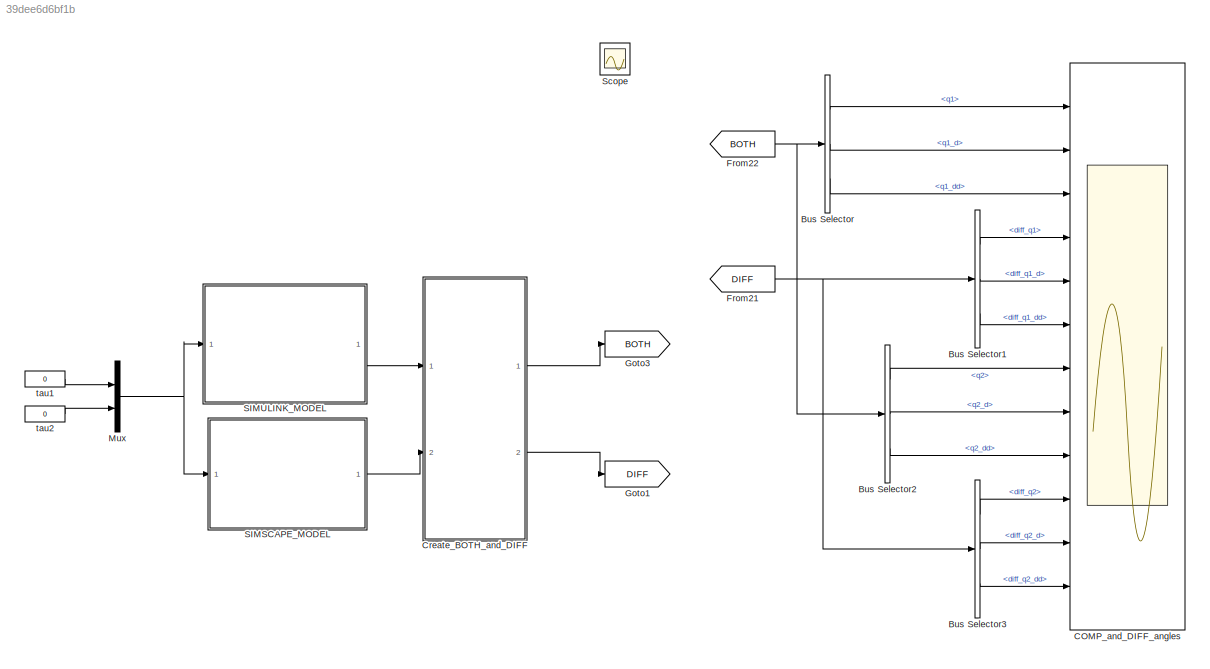
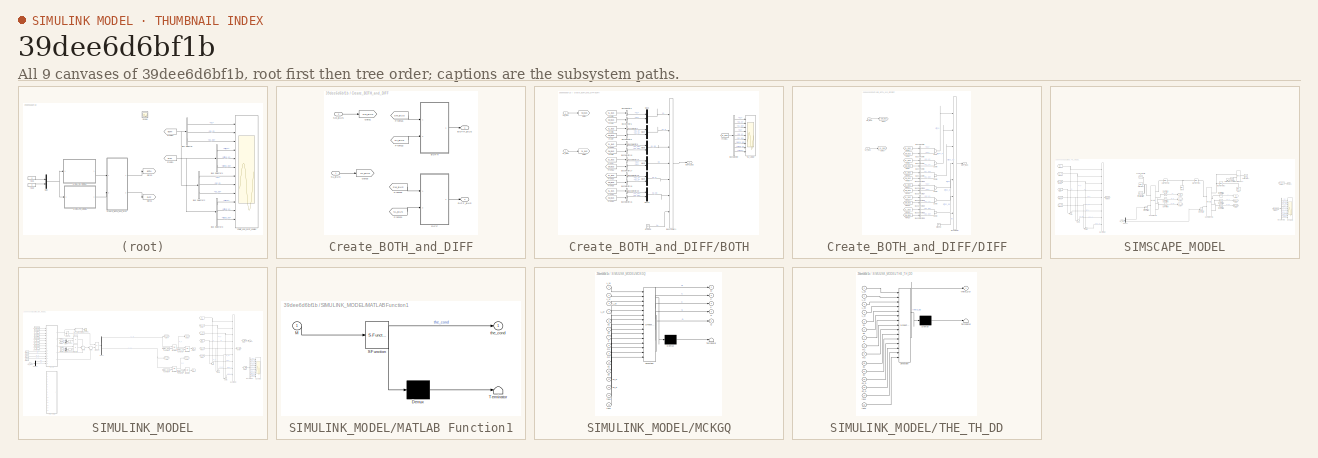
[diagram: thumbnail index - all 9 canvases of the model, root first then tree order]
MODEL slx_39dee6d6bf1b
KIND model
CONFIG AbsTol = auto
CONFIG EnableMultiTasking = on
CONFIG FixedStep = auto
CONFIG MaxStep = auto
CONFIG MinStep = auto
CONFIG RelTol = 1e-5
CONFIG SampleTimeConstraint = Unconstrained
CONFIG SolverName = ode15s
CONFIG StartTime = 0.0
CONFIG StopTime = 50
BLOCK [BusSelector] Bus Selector
  OutputSignals = q1,q1_d,q1_dd
  Ports = [1, 3]
BLOCK [BusSelector] Bus Selector1
  OutputSignals = diff_q1,diff_q1_d,diff_q1_dd
  Ports = [1, 3]
BLOCK [BusSelector] Bus Selector2
  OutputSignals = q2,q2_d,q2_dd
  Ports = [1, 3]
BLOCK [BusSelector] Bus Selector3
  OutputSignals = diff_q2,diff_q2_d,diff_q2_dd
  Ports = [1, 3]
BLOCK [Scope] COMP_and_DIFF_angles
  Floating = off
  NumInputPorts = 12
  Ports = [12]
  ScopeSpecificationString = Simulink.scopes.TimeScopeBlockCfg('CurrentConfiguration', extmgr.ConfigurationSet(extmgr.Configuration('Core','General UI',true),extmgr.Configuration('Core','Source UI',true),extmgr.Configuration('Sources','WiredSimulink',true,'DataLoggingVariableName','ScopeData3'),extmgr.Configuration('Visuals','Time Domain',true,'SerializedDisplays',{struct('MinYLimReal','-3.26836','MaxYLimReal','0.36315','YLab...<+9294ch>
BLOCK [SubSystem] Create_BOTH_and_DIFF
  Ports = [2, 2]
  RequestExecContextInheritance = off
BLOCK [SubSystem] Create_BOTH_and_DIFF/BOTH
  Ports = [2, 1]
  RequestExecContextInheritance = off
BLOCK [Outport] Create_BOTH_and_DIFF/BOTH/BOTH_BUS
BLOCK [BusCreator] Create_BOTH_and_DIFF/BOTH/Bus Creator1
  DisplayOption = bar
  InheritFromInputs = on
  Inputs = 7
  Ports = [7, 1]
BLOCK [BusSelector] Create_BOTH_and_DIFF/BOTH/Bus Selector
  OutputSignals = q1,q1_d,q1_dd,q2,q2_d,q2_dd,alpha_dd,alpha_d,alpha
  Ports = [1, 9]
BLOCK [BusSelector] Create_BOTH_and_DIFF/BOTH/Bus Selector10
  OutputSignals = q1_dd
  Ports = [1, 1]
BLOCK [BusSelector] Create_BOTH_and_DIFF/BOTH/Bus Selector15
  OutputSignals = q2_dd
  Ports = [1, 1]
BLOCK [BusSelector] Create_BOTH_and_DIFF/BOTH/Bus Selector16
  OutputSignals = q2
  Ports = [1, 1]
BLOCK [BusSelector] Create_BOTH_and_DIFF/BOTH/Bus Selector17
  OutputSignals = q2
  Ports = [1, 1]
BLOCK [BusSelector] Create_BOTH_and_DIFF/BOTH/Bus Selector18
  OutputSignals = q2_d
  Ports = [1, 1]
BLOCK [BusSelector] Create_BOTH_and_DIFF/BOTH/Bus Selector19
  OutputSignals = q2_d
  Ports = [1, 1]
BLOCK [BusSelector] Create_BOTH_and_DIFF/BOTH/Bus Selector20
  OutputSignals = q2_dd
  Ports = [1, 1]
BLOCK [BusSelector] Create_BOTH_and_DIFF/BOTH/Bus Selector5
  OutputSignals = q1
  Ports = [1, 1]
BLOCK [BusSelector] Create_BOTH_and_DIFF/BOTH/Bus Selector6
  OutputSignals = q1
  Ports = [1, 1]
BLOCK [BusSelector] Create_BOTH_and_DIFF/BOTH/Bus Selector7
  OutputSignals = q1_d
  Ports = [1, 1]
BLOCK [BusSelector] Create_BOTH_and_DIFF/BOTH/Bus Selector8
  OutputSignals = q1_d
  Ports = [1, 1]
BLOCK [BusSelector] Create_BOTH_and_DIFF/BOTH/Bus Selector9
  OutputSignals = q1_dd
  Ports = [1, 1]
BLOCK [From] Create_BOTH_and_DIFF/BOTH/From10
  GotoTag = SL_BUS
BLOCK [From] Create_BOTH_and_DIFF/BOTH/From15
  GotoTag = SL_BUS
BLOCK [From] Create_BOTH_and_DIFF/BOTH/From16
  GotoTag = SM_BUS
BLOCK [From] Create_BOTH_and_DIFF/BOTH/From17
  GotoTag = SL_BUS
BLOCK [From] Create_BOTH_and_DIFF/BOTH/From18
  GotoTag = SM_BUS
BLOCK [From] Create_BOTH_and_DIFF/BOTH/From19
  GotoTag = SL_BUS
BLOCK [From] Create_BOTH_and_DIFF/BOTH/From20
  GotoTag = SM_BUS
BLOCK [From] Create_BOTH_and_DIFF/BOTH/From21
  GotoTag = SL_BUS
BLOCK [From] Create_BOTH_and_DIFF/BOTH/From4
  GotoTag = SM_BUS
BLOCK [From] Create_BOTH_and_DIFF/BOTH/From5
  GotoTag = SL_BUS
BLOCK [From] Create_BOTH_and_DIFF/BOTH/From7
  GotoTag = SM_BUS
BLOCK [From] Create_BOTH_and_DIFF/BOTH/From8
  GotoTag = SL_BUS
BLOCK [From] Create_BOTH_and_DIFF/BOTH/From9
  GotoTag = SM_BUS
BLOCK [Goto] Create_BOTH_and_DIFF/BOTH/Goto1
  GotoTag = SM_BUS
BLOCK [Goto] Create_BOTH_and_DIFF/BOTH/Goto3
  GotoTag = SL_BUS
BLOCK [Ground] Create_BOTH_and_DIFF/BOTH/Ground
BLOCK [Mux] Create_BOTH_and_DIFF/BOTH/Mux10
  DisplayOption = bar
  Inputs = 2
  Ports = [2, 1]
BLOCK [Mux] Create_BOTH_and_DIFF/BOTH/Mux3
  DisplayOption = bar
  Inputs = 2
  Ports = [2, 1]
BLOCK [Mux] Create_BOTH_and_DIFF/BOTH/Mux4
  DisplayOption = bar
  Inputs = 2
  Ports = [2, 1]
BLOCK [Mux] Create_BOTH_and_DIFF/BOTH/Mux5
  DisplayOption = bar
  Inputs = 2
  Ports = [2, 1]
BLOCK [Mux] Create_BOTH_and_DIFF/BOTH/Mux8
  DisplayOption = bar
  Inputs = 2
  Ports = [2, 1]
BLOCK [Mux] Create_BOTH_and_DIFF/BOTH/Mux9
  DisplayOption = bar
  Inputs = 2
  Ports = [2, 1]
BLOCK [Scope] Create_BOTH_and_DIFF/BOTH/SL_ANGS
  Floating = off
  NumInputPorts = 9
  Ports = [9]
  ScopeSpecificationString = Simulink.scopes.TimeScopeBlockCfg('CurrentConfiguration', extmgr.ConfigurationSet(extmgr.Configuration('Core','General UI',true),extmgr.Configuration('Core','Source UI',true),extmgr.Configuration('Sources','WiredSimulink',true,'DataLoggingVariableName','ScopeData4'),extmgr.Configuration('Visuals','Time Domain',true,'SerializedDisplays',{struct('MinYLimReal','-55.14001','MaxYLimReal','327.33011','Y...<+6927ch>
BLOCK [Inport] Create_BOTH_and_DIFF/BOTH/SL_BUS
  Port = 2
BLOCK [Inport] Create_BOTH_and_DIFF/BOTH/SM_BUS
BLOCK [Outport] Create_BOTH_and_DIFF/BOTH_BUS
BLOCK [SubSystem] Create_BOTH_and_DIFF/DIFF
  Ports = [2, 1]
  RequestExecContextInheritance = off
BLOCK [BusCreator] Create_BOTH_and_DIFF/DIFF/Bus Creator
  DisplayOption = bar
  InheritFromInputs = on
  Inputs = 7
  Ports = [7, 1]
BLOCK [BusSelector] Create_BOTH_and_DIFF/DIFF/Bus Selector10
  OutputSignals = q1_dd
  Ports = [1, 1]
BLOCK [BusSelector] Create_BOTH_and_DIFF/DIFF/Bus Selector15
  OutputSignals = q2_dd
  Ports = [1, 1]
BLOCK [BusSelector] Create_BOTH_and_DIFF/DIFF/Bus Selector16
  OutputSignals = q2
  Ports = [1, 1]
BLOCK [BusSelector] Create_BOTH_and_DIFF/DIFF/Bus Selector17
  OutputSignals = q2
  Ports = [1, 1]
BLOCK [BusSelector] Create_BOTH_and_DIFF/DIFF/Bus Selector18
  OutputSignals = q2_d
  Ports = [1, 1]
BLOCK [BusSelector] Create_BOTH_and_DIFF/DIFF/Bus Selector19
  OutputSignals = q2_d
  Ports = [1, 1]
BLOCK [BusSelector] Create_BOTH_and_DIFF/DIFF/Bus Selector20
  OutputSignals = q2_dd
  Ports = [1, 1]
BLOCK [BusSelector] Create_BOTH_and_DIFF/DIFF/Bus Selector5
  OutputSignals = q1
  Ports = [1, 1]
BLOCK [BusSelector] Create_BOTH_and_DIFF/DIFF/Bus Selector6
  OutputSignals = q1
  Ports = [1, 1]
BLOCK [BusSelector] Create_BOTH_and_DIFF/DIFF/Bus Selector7
  OutputSignals = q1_d
  Ports = [1, 1]
BLOCK [BusSelector] Create_BOTH_and_DIFF/DIFF/Bus Selector8
  OutputSignals = q1_d
  Ports = [1, 1]
BLOCK [BusSelector] Create_BOTH_and_DIFF/DIFF/Bus Selector9
  OutputSignals = q1_dd
  Ports = [1, 1]
BLOCK [Outport] Create_BOTH_and_DIFF/DIFF/DIFF_BUS
BLOCK [From] Create_BOTH_and_DIFF/DIFF/From10
  GotoTag = SL_BUS
BLOCK [From] Create_BOTH_and_DIFF/DIFF/From15
  GotoTag = SL_BUS
BLOCK [From] Create_BOTH_and_DIFF/DIFF/From16
  GotoTag = SM_BUS
BLOCK [From] Create_BOTH_and_DIFF/DIFF/From17
  GotoTag = SL_BUS
BLOCK [From] Create_BOTH_and_DIFF/DIFF/From18
  GotoTag = SM_BUS
BLOCK [From] Create_BOTH_and_DIFF/DIFF/From19
  GotoTag = SL_BUS
BLOCK [From] Create_BOTH_and_DIFF/DIFF/From20
  GotoTag = SM_BUS
BLOCK [From] Create_BOTH_and_DIFF/DIFF/From4
  GotoTag = SM_BUS
BLOCK [From] Create_BOTH_and_DIFF/DIFF/From5
  GotoTag = SL_BUS
BLOCK [From] Create_BOTH_and_DIFF/DIFF/From7
  GotoTag = SM_BUS
BLOCK [From] Create_BOTH_and_DIFF/DIFF/From8
  GotoTag = SL_BUS
BLOCK [From] Create_BOTH_and_DIFF/DIFF/From9
  GotoTag = SM_BUS
BLOCK [Goto] Create_BOTH_and_DIFF/DIFF/Goto1
  GotoTag = SM_BUS
BLOCK [Goto] Create_BOTH_and_DIFF/DIFF/Goto3
  GotoTag = SL_BUS
BLOCK [Ground] Create_BOTH_and_DIFF/DIFF/Ground
BLOCK [Inport] Create_BOTH_and_DIFF/DIFF/SL_BUS
  Port = 2
BLOCK [Inport] Create_BOTH_and_DIFF/DIFF/SM_BUS
BLOCK [Sum] Create_BOTH_and_DIFF/DIFF/Sum2
  Inputs = +|-
  Ports = [2, 1]
BLOCK [Sum] Create_BOTH_and_DIFF/DIFF/Sum3
  Inputs = +|-
  Ports = [2, 1]
BLOCK [Sum] Create_BOTH_and_DIFF/DIFF/Sum4
  Inputs = +|-
  Ports = [2, 1]
BLOCK [Sum] Create_BOTH_and_DIFF/DIFF/Sum5
  Inputs = +|-
  Ports = [2, 1]
BLOCK [Sum] Create_BOTH_and_DIFF/DIFF/Sum6
  Inputs = +|-
  Ports = [2, 1]
BLOCK [Sum] Create_BOTH_and_DIFF/DIFF/Sum7
  Inputs = +|-
  Ports = [2, 1]
BLOCK [Outport] Create_BOTH_and_DIFF/DIFF_BUS
  Port = 2
BLOCK [From] Create_BOTH_and_DIFF/From21
  GotoTag = SM_BUS
BLOCK [From] Create_BOTH_and_DIFF/From22
  GotoTag = SL_BUS
BLOCK [From] Create_BOTH_and_DIFF/From23
  GotoTag = SM_BUS
BLOCK [From] Create_BOTH_and_DIFF/From24
  GotoTag = SL_BUS
BLOCK [Goto] Create_BOTH_and_DIFF/Goto1
  GotoTag = SM_BUS
BLOCK [Goto] Create_BOTH_and_DIFF/Goto3
  GotoTag = SL_BUS
BLOCK [Inport] Create_BOTH_and_DIFF/SL_BUS
BLOCK [Inport] Create_BOTH_and_DIFF/SM_BUS
  Port = 2
BLOCK [From] From21
  GotoTag = DIFF
BLOCK [From] From22
  GotoTag = BOTH
BLOCK [Goto] Goto1
  GotoTag = DIFF
BLOCK [Goto] Goto3
  GotoTag = BOTH
BLOCK [Mux] Mux
  DisplayOption = bar
  Inputs = 2
  Ports = [2, 1]
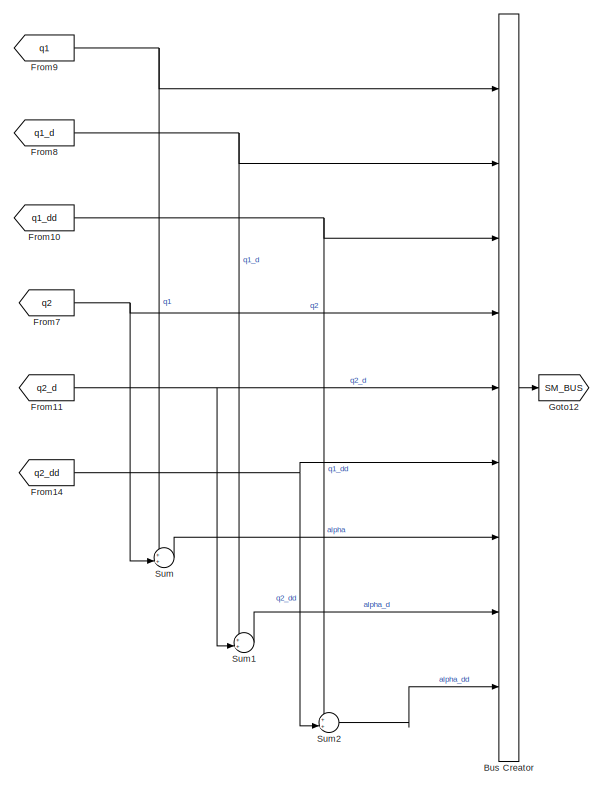
[diagram: SIMSCAPE_MODEL - part 1/3, left side, full height]
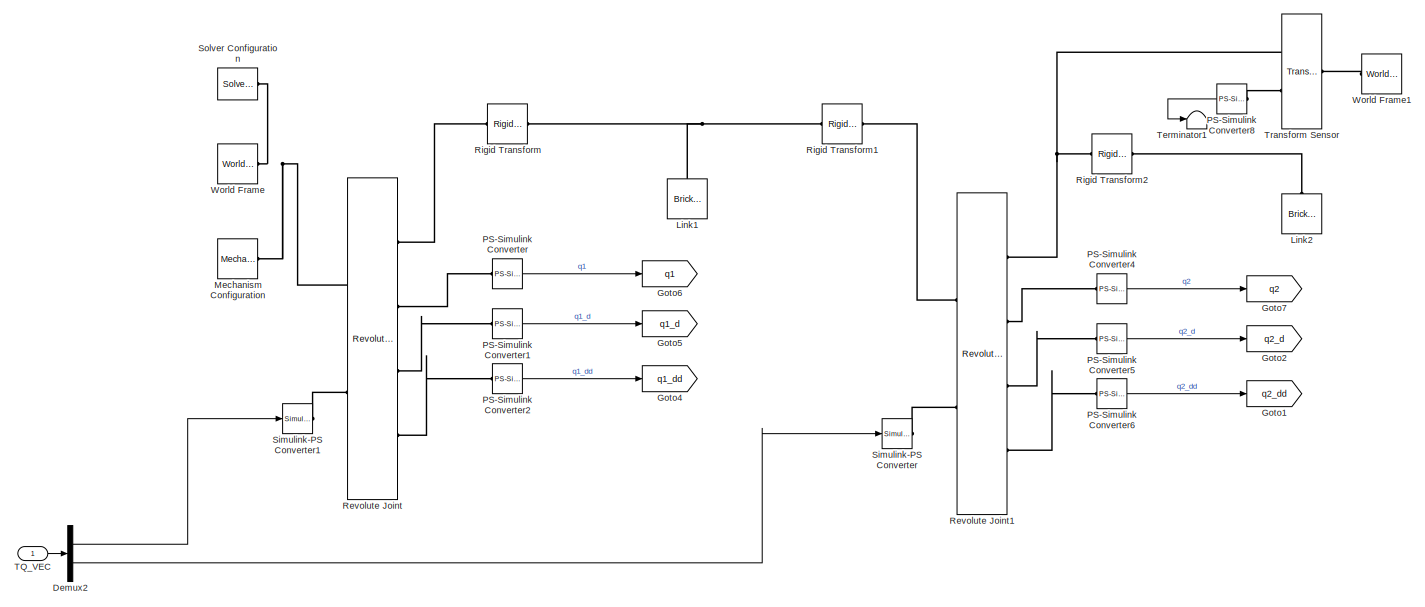
[diagram: SIMSCAPE_MODEL - part 2/3, center side, full height]
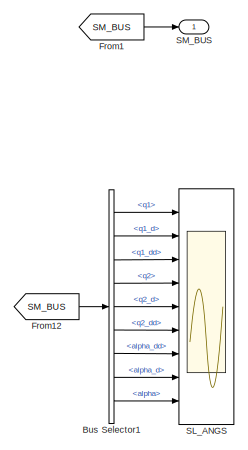
[diagram: SIMSCAPE_MODEL - part 3/3, middle right region]
BLOCK [SubSystem] SIMSCAPE_MODEL
  Ports = [1, 1]
  RequestExecContextInheritance = off
BLOCK [BusCreator] SIMSCAPE_MODEL/Bus Creator
  DisplayOption = bar
  InheritFromInputs = on
  Inputs = 9
  Ports = [9, 1]
BLOCK [BusSelector] SIMSCAPE_MODEL/Bus Selector1
  OutputSignals = q1,q1_d,q1_dd,q2,q2_d,q2_dd,alpha_dd,alpha_d,alpha
  Ports = [1, 9]
BLOCK [Demux] SIMSCAPE_MODEL/Demux2
  Outputs = 2
  Ports = [1, 2]
BLOCK [From] SIMSCAPE_MODEL/From1
  GotoTag = SM_BUS
BLOCK [From] SIMSCAPE_MODEL/From10
  GotoTag = q1_dd
BLOCK [From] SIMSCAPE_MODEL/From11
  GotoTag = q2_d
BLOCK [From] SIMSCAPE_MODEL/From12
  GotoTag = SM_BUS
BLOCK [From] SIMSCAPE_MODEL/From14
  GotoTag = q2_dd
BLOCK [From] SIMSCAPE_MODEL/From7
  GotoTag = q2
BLOCK [From] SIMSCAPE_MODEL/From8
  GotoTag = q1_d
BLOCK [From] SIMSCAPE_MODEL/From9
  GotoTag = q1
BLOCK [Goto] SIMSCAPE_MODEL/Goto1
  GotoTag = q2_dd
BLOCK [Goto] SIMSCAPE_MODEL/Goto12
  GotoTag = SM_BUS
BLOCK [Goto] SIMSCAPE_MODEL/Goto2
  GotoTag = q2_d
BLOCK [Goto] SIMSCAPE_MODEL/Goto4
  GotoTag = q1_dd
BLOCK [Goto] SIMSCAPE_MODEL/Goto5
  GotoTag = q1_d
BLOCK [Goto] SIMSCAPE_MODEL/Goto6
  GotoTag = q1
BLOCK [Goto] SIMSCAPE_MODEL/Goto7
  GotoTag = q2
BLOCK [Reference] SIMSCAPE_MODEL/Link1  REF=sm_lib/Body Elements/Brick Solid
  NameLocation = right
  Ports = [0, 0, 0, 0, 0, 0, 1]
  SourceBlock = sm_lib/Body Elements/Brick Solid
  SourceProductBaseCode = MS
  SourceType = Brick Solid
BLOCK [Reference] SIMSCAPE_MODEL/Link2  REF=sm_lib/Body Elements/Brick Solid
  NameLocation = right
  Ports = [0, 0, 0, 0, 0, 0, 1]
  SourceBlock = sm_lib/Body Elements/Brick Solid
  SourceProductBaseCode = MS
  SourceType = Brick Solid
BLOCK [Reference] SIMSCAPE_MODEL/Mechanism Configuration  REF=sm_lib/Utilities/Mechanism
Configuration
  Ports = [0, 0, 0, 0, 0, 0, 1]
  SourceBlock = sm_lib/Utilities/Mechanism\nConfiguration
  SourceProductBaseCode = MS
  SourceType = Mechanism\nConfiguration
BLOCK [Reference] SIMSCAPE_MODEL/PS-Simulink Converter  REF=nesl_utility/PS-Simulink
Converter
  Ports = [0, 1, 0, 0, 0, 1]
  SourceBlock = nesl_utility/PS-Simulink\nConverter
  SourceProductBaseCode = PW,SS
  SourceType = PS-Simulink\nConverter
BLOCK [Reference] SIMSCAPE_MODEL/PS-Simulink Converter1  REF=nesl_utility/PS-Simulink
Converter
  Ports = [0, 1, 0, 0, 0, 1]
  SourceBlock = nesl_utility/PS-Simulink\nConverter
  SourceProductBaseCode = PW,SS
  SourceType = PS-Simulink\nConverter
BLOCK [Reference] SIMSCAPE_MODEL/PS-Simulink Converter2  REF=nesl_utility/PS-Simulink
Converter
  Ports = [0, 1, 0, 0, 0, 1]
  SourceBlock = nesl_utility/PS-Simulink\nConverter
  SourceProductBaseCode = PW,SS
  SourceType = PS-Simulink\nConverter
BLOCK [Reference] SIMSCAPE_MODEL/PS-Simulink Converter4  REF=nesl_utility/PS-Simulink
Converter
  Ports = [0, 1, 0, 0, 0, 1]
  SourceBlock = nesl_utility/PS-Simulink\nConverter
  SourceProductBaseCode = PW,SS
  SourceType = PS-Simulink\nConverter
BLOCK [Reference] SIMSCAPE_MODEL/PS-Simulink Converter5  REF=nesl_utility/PS-Simulink
Converter
  Ports = [0, 1, 0, 0, 0, 1]
  SourceBlock = nesl_utility/PS-Simulink\nConverter
  SourceProductBaseCode = PW,SS
  SourceType = PS-Simulink\nConverter
BLOCK [Reference] SIMSCAPE_MODEL/PS-Simulink Converter6  REF=nesl_utility/PS-Simulink
Converter
  Ports = [0, 1, 0, 0, 0, 1]
  SourceBlock = nesl_utility/PS-Simulink\nConverter
  SourceProductBaseCode = PW,SS
  SourceType = PS-Simulink\nConverter
BLOCK [Reference] SIMSCAPE_MODEL/PS-Simulink Converter8  REF=nesl_utility/PS-Simulink
Converter
  NameLocation = top
  Ports = [0, 1, 0, 0, 0, 1]
  SourceBlock = nesl_utility/PS-Simulink\nConverter
  SourceProductBaseCode = PW,SS
  SourceType = PS-Simulink\nConverter
BLOCK [Reference] SIMSCAPE_MODEL/Revolute Joint  REF=sm_lib/Joints/Revolute Joint
  AttributesFormatString = %<DampingCoefficient>\n%<PositionTargetValue>\n%<VelocityTargetValue>
  Ports = [0, 0, 0, 0, 0, 2, 4]
  SourceBlock = sm_lib/Joints/Revolute Joint
  SourceProductBaseCode = MS
  SourceType = Revolute Joint
BLOCK [Reference] SIMSCAPE_MODEL/Revolute Joint1  REF=sm_lib/Joints/Revolute Joint
  AttributesFormatString = %<DampingCoefficient>\n%<PositionTargetValue>\n%<VelocityTargetValue>
  Ports = [0, 0, 0, 0, 0, 2, 4]
  SourceBlock = sm_lib/Joints/Revolute Joint
  SourceProductBaseCode = MS
  SourceType = Revolute Joint
BLOCK [Reference] SIMSCAPE_MODEL/Rigid Transform  REF=sm_lib/Frames and
Transforms/Rigid
Transform
  Ports = [0, 0, 0, 0, 0, 1, 1]
  SourceBlock = sm_lib/Frames and\nTransforms/Rigid\nTransform
  SourceProductBaseCode = MS
  SourceType = Rigid\nTransform
BLOCK [Reference] SIMSCAPE_MODEL/Rigid Transform1  REF=sm_lib/Frames and
Transforms/Rigid
Transform
  Ports = [0, 0, 0, 0, 0, 1, 1]
  SourceBlock = sm_lib/Frames and\nTransforms/Rigid\nTransform
  SourceProductBaseCode = MS
  SourceType = Rigid\nTransform
BLOCK [Reference] SIMSCAPE_MODEL/Rigid Transform2  REF=sm_lib/Frames and
Transforms/Rigid
Transform
  Ports = [0, 0, 0, 0, 0, 1, 1]
  SourceBlock = sm_lib/Frames and\nTransforms/Rigid\nTransform
  SourceProductBaseCode = MS
  SourceType = Rigid\nTransform
BLOCK [Scope] SIMSCAPE_MODEL/SL_ANGS
  Floating = off
  NumInputPorts = 9
  Ports = [9]
  ScopeSpecificationString = Simulink.scopes.TimeScopeBlockCfg('CurrentConfiguration', extmgr.ConfigurationSet(extmgr.Configuration('Core','General UI',true),extmgr.Configuration('Core','Source UI',true),extmgr.Configuration('Sources','WiredSimulink',true,'DataLoggingVariableName','ScopeData1'),extmgr.Configuration('Visuals','Time Domain',true,'SerializedDisplays',{struct('MinYLimReal','-55.14001','MaxYLimReal','327.33011','Y...<+6927ch>
BLOCK [Outport] SIMSCAPE_MODEL/SM_BUS
BLOCK [Reference] SIMSCAPE_MODEL/Simulink-PS Converter  REF=nesl_utility/Simulink-PS
Converter
  Ports = [1, 0, 0, 0, 0, 0, 1]
  SourceBlock = nesl_utility/Simulink-PS\nConverter
  SourceProductBaseCode = PW,SS
  SourceType = Simulink-PS\nConverter
BLOCK [Reference] SIMSCAPE_MODEL/Simulink-PS Converter1  REF=nesl_utility/Simulink-PS
Converter
  Ports = [1, 0, 0, 0, 0, 0, 1]
  SourceBlock = nesl_utility/Simulink-PS\nConverter
  SourceProductBaseCode = PW,SS
  SourceType = Simulink-PS\nConverter
BLOCK [Reference] SIMSCAPE_MODEL/Solver Configuration  REF=nesl_utility/Solver
Configuration
  Ports = [0, 0, 0, 0, 0, 0, 1]
  SourceBlock = nesl_utility/Solver\nConfiguration
  SourceProductBaseCode = PW,SS
  SourceType = Solver\nConfiguration
BLOCK [Sum] SIMSCAPE_MODEL/Sum
  Inputs = ++|
  Ports = [2, 1]
BLOCK [Sum] SIMSCAPE_MODEL/Sum1
  Inputs = ++|
  Ports = [2, 1]
BLOCK [Sum] SIMSCAPE_MODEL/Sum2
  Inputs = ++|
  Ports = [2, 1]
BLOCK [Inport] SIMSCAPE_MODEL/TQ_VEC
BLOCK [Terminator] SIMSCAPE_MODEL/Terminator1
BLOCK [Reference] SIMSCAPE_MODEL/Transform Sensor  REF=sm_lib/Frames and
Transforms/Transform
Sensor
  NameLocation = top
  Ports = [0, 0, 0, 0, 0, 1, 2]
  SourceBlock = sm_lib/Frames and\nTransforms/Transform\nSensor
  SourceProductBaseCode = MS
  SourceType = Transform\nSensor
BLOCK [Reference] SIMSCAPE_MODEL/World Frame  REF=sm_lib/Frames and
Transforms/World Frame
  Ports = [0, 0, 0, 0, 0, 0, 1]
  SourceBlock = sm_lib/Frames and\nTransforms/World Frame
  SourceProductBaseCode = MS
  SourceType = World Frame
BLOCK [Reference] SIMSCAPE_MODEL/World Frame1  REF=sm_lib/Frames and
Transforms/World Frame
  NameLocation = top
  Ports = [0, 0, 0, 0, 0, 0, 1]
  SourceBlock = sm_lib/Frames and\nTransforms/World Frame
  SourceProductBaseCode = MS
  SourceType = World Frame
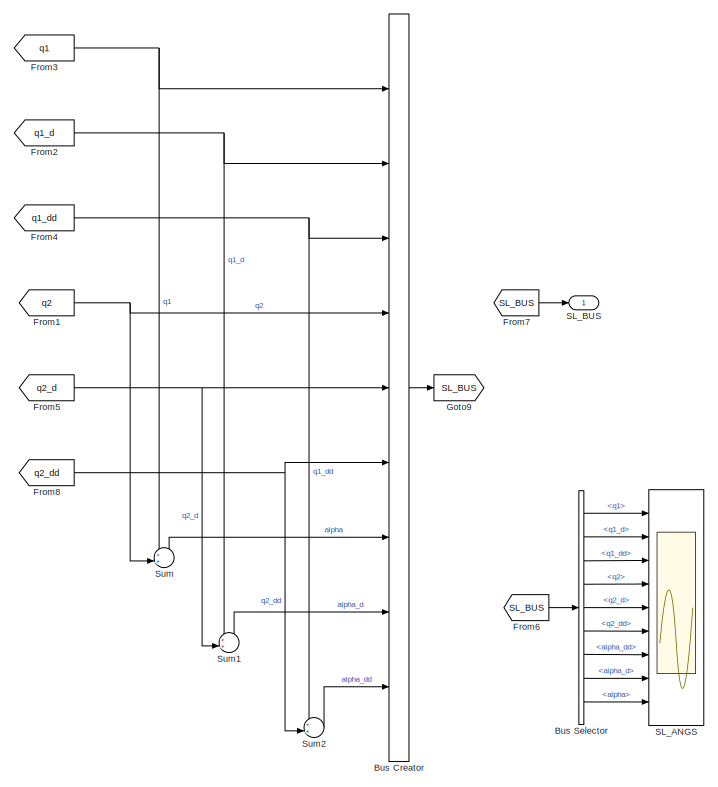
[diagram: SIMULINK_MODEL - part 1/3, middle right region]
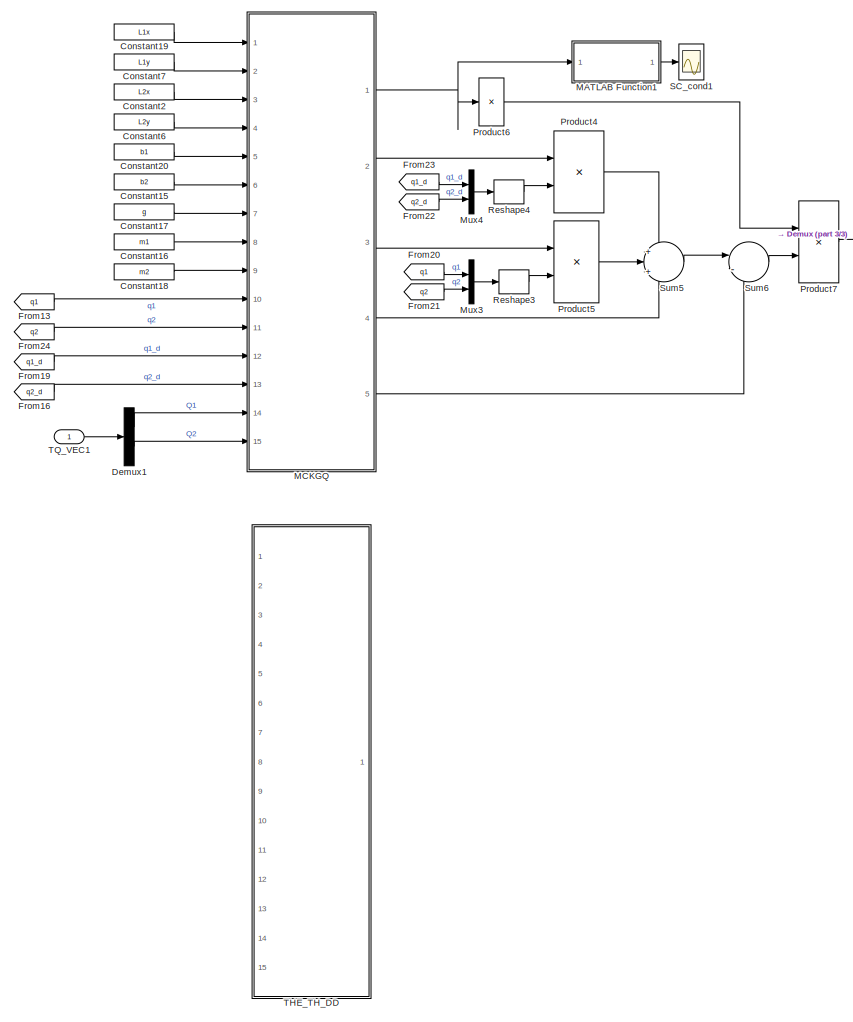
[diagram: SIMULINK_MODEL - part 2/3, left side, full height]
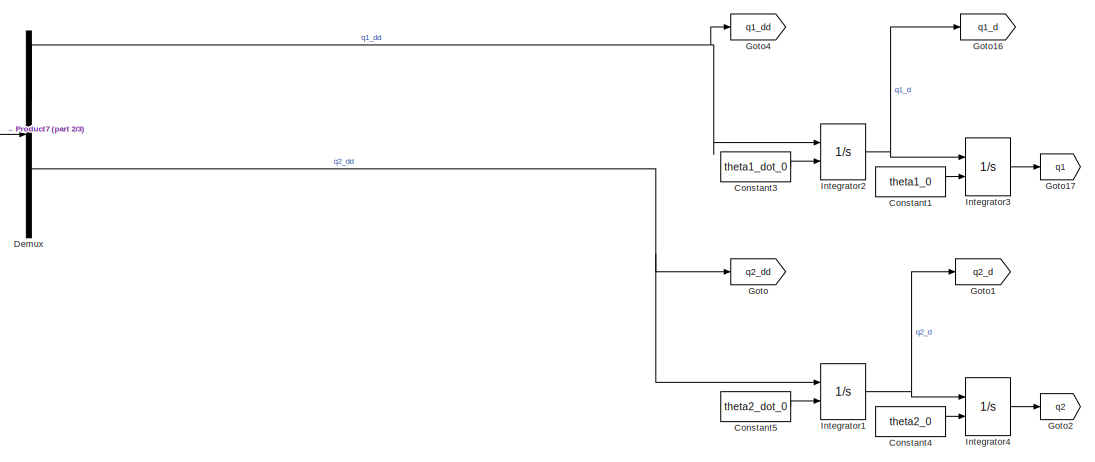
[diagram: SIMULINK_MODEL - part 3/3, central region]
BLOCK [SubSystem] SIMULINK_MODEL
  NameLocation = top
  Ports = [1, 1]
  RequestExecContextInheritance = off
BLOCK [BusCreator] SIMULINK_MODEL/Bus Creator
  DisplayOption = bar
  InheritFromInputs = on
  Inputs = 9
  Ports = [9, 1]
BLOCK [BusSelector] SIMULINK_MODEL/Bus Selector
  OutputSignals = q1,q1_d,q1_dd,q2,q2_d,q2_dd,alpha_dd,alpha_d,alpha
  Ports = [1, 9]
BLOCK [Constant] SIMULINK_MODEL/Constant1
  Value = theta1_0
BLOCK [Constant] SIMULINK_MODEL/Constant15
  Value = b2
BLOCK [Constant] SIMULINK_MODEL/Constant16
  Value = m1
BLOCK [Constant] SIMULINK_MODEL/Constant17
  Value = g
BLOCK [Constant] SIMULINK_MODEL/Constant18
  Value = m2
BLOCK [Constant] SIMULINK_MODEL/Constant19
  Value = L1x
BLOCK [Constant] SIMULINK_MODEL/Constant2
  Value = L2x
BLOCK [Constant] SIMULINK_MODEL/Constant20
  Value = b1
BLOCK [Constant] SIMULINK_MODEL/Constant3
  Value = theta1_dot_0
BLOCK [Constant] SIMULINK_MODEL/Constant4
  Value = theta2_0
BLOCK [Constant] SIMULINK_MODEL/Constant5
  Value = theta2_dot_0
BLOCK [Constant] SIMULINK_MODEL/Constant6
  Value = L2y
BLOCK [Constant] SIMULINK_MODEL/Constant7
  Value = L1y
BLOCK [Demux] SIMULINK_MODEL/Demux
  Outputs = 2
  Ports = [1, 2]
BLOCK [Demux] SIMULINK_MODEL/Demux1
  Outputs = 2
  Ports = [1, 2]
BLOCK [From] SIMULINK_MODEL/From1
  GotoTag = q2
BLOCK [From] SIMULINK_MODEL/From13
  GotoTag = q1
BLOCK [From] SIMULINK_MODEL/From16
  GotoTag = q2_d
BLOCK [From] SIMULINK_MODEL/From19
  GotoTag = q1_d
BLOCK [From] SIMULINK_MODEL/From2
  GotoTag = q1_d
BLOCK [From] SIMULINK_MODEL/From20
  GotoTag = q1
BLOCK [From] SIMULINK_MODEL/From21
  GotoTag = q2
BLOCK [From] SIMULINK_MODEL/From22
  GotoTag = q2_d
BLOCK [From] SIMULINK_MODEL/From23
  GotoTag = q1_d
BLOCK [From] SIMULINK_MODEL/From24
  GotoTag = q2
BLOCK [From] SIMULINK_MODEL/From3
  GotoTag = q1
BLOCK [From] SIMULINK_MODEL/From4
  GotoTag = q1_dd
BLOCK [From] SIMULINK_MODEL/From5
  GotoTag = q2_d
BLOCK [From] SIMULINK_MODEL/From6
  GotoTag = SL_BUS
BLOCK [From] SIMULINK_MODEL/From7
  GotoTag = SL_BUS
BLOCK [From] SIMULINK_MODEL/From8
  GotoTag = q2_dd
BLOCK [Goto] SIMULINK_MODEL/Goto
  GotoTag = q2_dd
BLOCK [Goto] SIMULINK_MODEL/Goto1
  GotoTag = q2_d
BLOCK [Goto] SIMULINK_MODEL/Goto16
  GotoTag = q1_d
BLOCK [Goto] SIMULINK_MODEL/Goto17
  GotoTag = q1
BLOCK [Goto] SIMULINK_MODEL/Goto2
  GotoTag = q2
BLOCK [Goto] SIMULINK_MODEL/Goto4
  GotoTag = q1_dd
BLOCK [Goto] SIMULINK_MODEL/Goto9
  GotoTag = SL_BUS
BLOCK [Integrator] SIMULINK_MODEL/Integrator1
  InitialConditionSource = external
  Ports = [2, 1]
BLOCK [Integrator] SIMULINK_MODEL/Integrator2
  InitialConditionSource = external
  Ports = [2, 1]
BLOCK [Integrator] SIMULINK_MODEL/Integrator3
  InitialConditionSource = external
  Ports = [2, 1]
BLOCK [Integrator] SIMULINK_MODEL/Integrator4
  InitialConditionSource = external
  Ports = [2, 1]
BLOCK [SubSystem] SIMULINK_MODEL/MATLAB Function1
  ErrorFcn = Stateflow.Translate.translate
  PermitHierarchicalResolution = ExplicitOnly
  Ports = [1, 1]
  RequestExecContextInheritance = off
  SFBlockType = MATLAB Function
  TreatAsAtomicUnit = on
BLOCK [Demux] SIMULINK_MODEL/MATLAB Function1/ Demux 
  Outputs = 1
  Ports = [1, 1]
BLOCK [S-Function] SIMULINK_MODEL/MATLAB Function1/ SFunction 
  EnableBusSupport = on
  FunctionName = sf_sfun
  PortCounts = [1 2]
  Ports = [1, 2]
  SFcnIsStateOwnerBlock = off
  SFunctionDeploymentMode = off
  Tag = Stateflow S-Function 3
BLOCK [Terminator] SIMULINK_MODEL/MATLAB Function1/ Terminator 
BLOCK [Inport] SIMULINK_MODEL/MATLAB Function1/M
BLOCK [Outport] SIMULINK_MODEL/MATLAB Function1/the_cond
BLOCK [SubSystem] SIMULINK_MODEL/MCKGQ
  ErrorFcn = Stateflow.Translate.translate
  PermitHierarchicalResolution = ExplicitOnly
  Ports = [15, 5]
  RequestExecContextInheritance = off
  SFBlockType = MATLAB Function
  TreatAsAtomicUnit = on
BLOCK [Demux] SIMULINK_MODEL/MCKGQ/ Demux 
  Outputs = 1
  Ports = [1, 1]
BLOCK [S-Function] SIMULINK_MODEL/MCKGQ/ SFunction 
  EnableBusSupport = on
  FunctionName = sf_sfun
  PortCounts = [15 6]
  Ports = [15, 6]
  SFcnIsStateOwnerBlock = off
  SFunctionDeploymentMode = off
  Tag = Stateflow S-Function 2
BLOCK [Terminator] SIMULINK_MODEL/MCKGQ/ Terminator 
BLOCK [Outport] SIMULINK_MODEL/MCKGQ/C
  Port = 2
BLOCK [Outport] SIMULINK_MODEL/MCKGQ/G
  Port = 4
BLOCK [Outport] SIMULINK_MODEL/MCKGQ/K
  Port = 3
BLOCK [Inport] SIMULINK_MODEL/MCKGQ/L_1x
BLOCK [Inport] SIMULINK_MODEL/MCKGQ/L_1y
  Port = 2
BLOCK [Inport] SIMULINK_MODEL/MCKGQ/L_2x
  Port = 3
BLOCK [Inport] SIMULINK_MODEL/MCKGQ/L_2y
  Port = 4
BLOCK [Outport] SIMULINK_MODEL/MCKGQ/M
BLOCK [Outport] SIMULINK_MODEL/MCKGQ/Q
  Port = 5
BLOCK [Inport] SIMULINK_MODEL/MCKGQ/b1
  Port = 5
BLOCK [Inport] SIMULINK_MODEL/MCKGQ/b2
  Port = 6
BLOCK [Inport] SIMULINK_MODEL/MCKGQ/g
  Port = 7
BLOCK [Inport] SIMULINK_MODEL/MCKGQ/m1
  Port = 8
BLOCK [Inport] SIMULINK_MODEL/MCKGQ/m2
  Port = 9
BLOCK [Inport] SIMULINK_MODEL/MCKGQ/q1
  Port = 10
BLOCK [Inport] SIMULINK_MODEL/MCKGQ/q1_D
  Port = 12
BLOCK [Inport] SIMULINK_MODEL/MCKGQ/q2
  Port = 11
BLOCK [Inport] SIMULINK_MODEL/MCKGQ/q2_D
  Port = 13
BLOCK [Inport] SIMULINK_MODEL/MCKGQ/tau1
  Port = 14
BLOCK [Inport] SIMULINK_MODEL/MCKGQ/tau2
  Port = 15
BLOCK [Mux] SIMULINK_MODEL/Mux3
  DisplayOption = bar
  Inputs = 2
  Ports = [2, 1]
BLOCK [Mux] SIMULINK_MODEL/Mux4
  DisplayOption = bar
  Inputs = 2
  Ports = [2, 1]
BLOCK [Product] SIMULINK_MODEL/Product4
  Multiplication = Matrix(*)
  Ports = [2, 1]
BLOCK [Product] SIMULINK_MODEL/Product5
  Multiplication = Matrix(*)
  Ports = [2, 1]
BLOCK [Product] SIMULINK_MODEL/Product6
  Inputs = /
  Multiplication = Matrix(*)
  Ports = [1, 1]
BLOCK [Product] SIMULINK_MODEL/Product7
  Multiplication = Matrix(*)
  Ports = [2, 1]
BLOCK [Reshape] SIMULINK_MODEL/Reshape3
  OutputDimensionality = Column vector (2-D)
  Ports = [1, 1]
BLOCK [Reshape] SIMULINK_MODEL/Reshape4
  OutputDimensionality = Column vector (2-D)
  Ports = [1, 1]
BLOCK [Scope] SIMULINK_MODEL/SC_cond1
  Floating = off
  NumInputPorts = 1
  Ports = [1]
  ScopeSpecificationString = Simulink.scopes.TimeScopeBlockCfg('CurrentConfiguration', extmgr.ConfigurationSet(extmgr.Configuration('Core','General UI',true),extmgr.Configuration('Core','Source UI',true),extmgr.Configuration('Sources','WiredSimulink',true,'DataLoggingVariableName','ScopeData1'),extmgr.Configuration('Visuals','Time Domain',true,'SerializedDisplays',{struct('MinYLimReal','43.00725','MaxYLimReal','44.76554','YLa...<+1399ch>
BLOCK [Scope] SIMULINK_MODEL/SL_ANGS
  Floating = off
  NumInputPorts = 9
  Ports = [9]
  ScopeSpecificationString = Simulink.scopes.TimeScopeBlockCfg('CurrentConfiguration', extmgr.ConfigurationSet(extmgr.Configuration('Core','General UI',true),extmgr.Configuration('Core','Source UI',true),extmgr.Configuration('Sources','WiredSimulink',true,'DataLoggingVariableName','ScopeData1'),extmgr.Configuration('Visuals','Time Domain',true,'SerializedDisplays',{struct('MinYLimReal','-25.57604','MaxYLimReal','4.42831','YLa...<+6908ch>
BLOCK [Outport] SIMULINK_MODEL/SL_BUS
BLOCK [Sum] SIMULINK_MODEL/Sum
  Inputs = ++|
  Ports = [2, 1]
BLOCK [Sum] SIMULINK_MODEL/Sum1
  Inputs = ++|
  Ports = [2, 1]
BLOCK [Sum] SIMULINK_MODEL/Sum2
  Inputs = ++|
  Ports = [2, 1]
BLOCK [Sum] SIMULINK_MODEL/Sum5
  Inputs = +|+|+
  Ports = [3, 1]
BLOCK [Sum] SIMULINK_MODEL/Sum6
  Inputs = |-+
  Ports = [2, 1]
BLOCK [SubSystem] SIMULINK_MODEL/THE_TH_DD
  Commented = on
  ErrorFcn = Stateflow.Translate.translate
  PermitHierarchicalResolution = ExplicitOnly
  Ports = [15, 1]
  RequestExecContextInheritance = off
  SFBlockType = MATLAB Function
  TreatAsAtomicUnit = on
BLOCK [Demux] SIMULINK_MODEL/THE_TH_DD/ Demux 
  Outputs = 1
  Ports = [1, 1]
BLOCK [S-Function] SIMULINK_MODEL/THE_TH_DD/ SFunction 
  EnableBusSupport = on
  FunctionName = sf_sfun
  PortCounts = [15 2]
  Ports = [15, 2]
  SFcnIsStateOwnerBlock = off
  SFunctionDeploymentMode = off
  Tag = Stateflow S-Function 1
BLOCK [Terminator] SIMULINK_MODEL/THE_TH_DD/ Terminator 
BLOCK [Inport] SIMULINK_MODEL/THE_TH_DD/L_1x
BLOCK [Inport] SIMULINK_MODEL/THE_TH_DD/L_1y
  Port = 2
BLOCK [Inport] SIMULINK_MODEL/THE_TH_DD/L_2x
  Port = 3
BLOCK [Inport] SIMULINK_MODEL/THE_TH_DD/L_2y
  Port = 4
BLOCK [Inport] SIMULINK_MODEL/THE_TH_DD/b1
  Port = 5
BLOCK [Inport] SIMULINK_MODEL/THE_TH_DD/b2
  Port = 6
BLOCK [Inport] SIMULINK_MODEL/THE_TH_DD/g
  Port = 7
BLOCK [Inport] SIMULINK_MODEL/THE_TH_DD/m1
  Port = 8
BLOCK [Inport] SIMULINK_MODEL/THE_TH_DD/m2
  Port = 9
BLOCK [Inport] SIMULINK_MODEL/THE_TH_DD/q1
  Port = 10
BLOCK [Inport] SIMULINK_MODEL/THE_TH_DD/q1_D
  Port = 12
BLOCK [Inport] SIMULINK_MODEL/THE_TH_DD/q2
  Port = 11
BLOCK [Inport] SIMULINK_MODEL/THE_TH_DD/q2_D
  Port = 13
BLOCK [Inport] SIMULINK_MODEL/THE_TH_DD/tau1
  Port = 14
BLOCK [Inport] SIMULINK_MODEL/THE_TH_DD/tau2
  Port = 15
BLOCK [Outport] SIMULINK_MODEL/THE_TH_DD/theta_DD
BLOCK [Inport] SIMULINK_MODEL/TQ_VEC1
BLOCK [Scope] Scope
  Floating = off
  IOType = viewer
  NumInputPorts = 1
  Ports = []
  ScopeSpecificationString = Simulink.scopes.TimeScopeBlockCfg('CurrentConfiguration', extmgr.ConfigurationSet(extmgr.Configuration('Core','General UI',true),extmgr.Configuration('Core','Source UI',true),extmgr.Configuration('Sources','WiredSimulink',true,'DataLoggingVariableName','ScopeData1'),extmgr.Configuration('Visuals','Time Domain',true,'SerializedDisplays',{struct('MinYLimReal','-3.23725','MaxYLimReal','5.3541','YLabe...<+1399ch>
BLOCK [Constant] tau1
  Value = 0
BLOCK [Constant] tau2
  Value = 0
LINE Bus Selector1:1 -> COMP_and_DIFF_angles:4
LINE Bus Selector1:2 -> COMP_and_DIFF_angles:5
LINE Bus Selector1:3 -> COMP_and_DIFF_angles:6
LINE Bus Selector2:1 -> COMP_and_DIFF_angles:7
LINE Bus Selector2:2 -> COMP_and_DIFF_angles:8
LINE Bus Selector2:3 -> COMP_and_DIFF_angles:9
LINE Bus Selector3:1 -> COMP_and_DIFF_angles:10
LINE Bus Selector3:2 -> COMP_and_DIFF_angles:11
LINE Bus Selector3:3 -> COMP_and_DIFF_angles:12
LINE Bus Selector:1 -> COMP_and_DIFF_angles:1
LINE Bus Selector:2 -> COMP_and_DIFF_angles:2
LINE Bus Selector:3 -> COMP_and_DIFF_angles:3
LINE Create_BOTH_and_DIFF/BOTH/Bus Creator1:1 -> Create_BOTH_and_DIFF/BOTH/BOTH_BUS:1
LINE Create_BOTH_and_DIFF/BOTH/Bus Selector10:1 -> Create_BOTH_and_DIFF/BOTH/Mux5:2
LINE Create_BOTH_and_DIFF/BOTH/Bus Selector15:1 -> Create_BOTH_and_DIFF/BOTH/Mux10:2
LINE Create_BOTH_and_DIFF/BOTH/Bus Selector16:1 -> Create_BOTH_and_DIFF/BOTH/Mux8:1
LINE Create_BOTH_and_DIFF/BOTH/Bus Selector17:1 -> Create_BOTH_and_DIFF/BOTH/Mux8:2
LINE Create_BOTH_and_DIFF/BOTH/Bus Selector18:1 -> Create_BOTH_and_DIFF/BOTH/Mux9:1
LINE Create_BOTH_and_DIFF/BOTH/Bus Selector19:1 -> Create_BOTH_and_DIFF/BOTH/Mux9:2
LINE Create_BOTH_and_DIFF/BOTH/Bus Selector20:1 -> Create_BOTH_and_DIFF/BOTH/Mux10:1
LINE Create_BOTH_and_DIFF/BOTH/Bus Selector5:1 -> Create_BOTH_and_DIFF/BOTH/Mux3:1
LINE Create_BOTH_and_DIFF/BOTH/Bus Selector6:1 -> Create_BOTH_and_DIFF/BOTH/Mux3:2
LINE Create_BOTH_and_DIFF/BOTH/Bus Selector7:1 -> Create_BOTH_and_DIFF/BOTH/Mux4:1
LINE Create_BOTH_and_DIFF/BOTH/Bus Selector8:1 -> Create_BOTH_and_DIFF/BOTH/Mux4:2
LINE Create_BOTH_and_DIFF/BOTH/Bus Selector9:1 -> Create_BOTH_and_DIFF/BOTH/Mux5:1
LINE Create_BOTH_and_DIFF/BOTH/Bus Selector:1 -> Create_BOTH_and_DIFF/BOTH/SL_ANGS:1
LINE Create_BOTH_and_DIFF/BOTH/Bus Selector:2 -> Create_BOTH_and_DIFF/BOTH/SL_ANGS:2
LINE Create_BOTH_and_DIFF/BOTH/Bus Selector:3 -> Create_BOTH_and_DIFF/BOTH/SL_ANGS:3
LINE Create_BOTH_and_DIFF/BOTH/Bus Selector:4 -> Create_BOTH_and_DIFF/BOTH/SL_ANGS:4
LINE Create_BOTH_and_DIFF/BOTH/Bus Selector:5 -> Create_BOTH_and_DIFF/BOTH/SL_ANGS:5
LINE Create_BOTH_and_DIFF/BOTH/Bus Selector:6 -> Create_BOTH_and_DIFF/BOTH/SL_ANGS:6
LINE Create_BOTH_and_DIFF/BOTH/Bus Selector:7 -> Create_BOTH_and_DIFF/BOTH/SL_ANGS:7
LINE Create_BOTH_and_DIFF/BOTH/Bus Selector:8 -> Create_BOTH_and_DIFF/BOTH/SL_ANGS:8
LINE Create_BOTH_and_DIFF/BOTH/Bus Selector:9 -> Create_BOTH_and_DIFF/BOTH/SL_ANGS:9
LINE Create_BOTH_and_DIFF/BOTH/From10:1 -> Create_BOTH_and_DIFF/BOTH/Bus Selector9:1
LINE Create_BOTH_and_DIFF/BOTH/From15:1 -> Create_BOTH_and_DIFF/BOTH/Bus Selector20:1
LINE Create_BOTH_and_DIFF/BOTH/From16:1 -> Create_BOTH_and_DIFF/BOTH/Bus Selector17:1
LINE Create_BOTH_and_DIFF/BOTH/From17:1 -> Create_BOTH_and_DIFF/BOTH/Bus Selector16:1
LINE Create_BOTH_and_DIFF/BOTH/From18:1 -> Create_BOTH_and_DIFF/BOTH/Bus Selector19:1
LINE Create_BOTH_and_DIFF/BOTH/From19:1 -> Create_BOTH_and_DIFF/BOTH/Bus Selector18:1
LINE Create_BOTH_and_DIFF/BOTH/From20:1 -> Create_BOTH_and_DIFF/BOTH/Bus Selector15:1
LINE Create_BOTH_and_DIFF/BOTH/From21:1 -> Create_BOTH_and_DIFF/BOTH/Bus Selector:1
LINE Create_BOTH_and_DIFF/BOTH/From4:1 -> Create_BOTH_and_DIFF/BOTH/Bus Selector6:1
LINE Create_BOTH_and_DIFF/BOTH/From5:1 -> Create_BOTH_and_DIFF/BOTH/Bus Selector5:1
LINE Create_BOTH_and_DIFF/BOTH/From7:1 -> Create_BOTH_and_DIFF/BOTH/Bus Selector8:1
LINE Create_BOTH_and_DIFF/BOTH/From8:1 -> Create_BOTH_and_DIFF/BOTH/Bus Selector7:1
LINE Create_BOTH_and_DIFF/BOTH/From9:1 -> Create_BOTH_and_DIFF/BOTH/Bus Selector10:1
LINE Create_BOTH_and_DIFF/BOTH/Ground:1 -> Create_BOTH_and_DIFF/BOTH/Bus Creator1:7
LINE Create_BOTH_and_DIFF/BOTH/Mux10:1 -> Create_BOTH_and_DIFF/BOTH/Bus Creator1:6
LINE Create_BOTH_and_DIFF/BOTH/Mux3:1 -> Create_BOTH_and_DIFF/BOTH/Bus Creator1:1
LINE Create_BOTH_and_DIFF/BOTH/Mux4:1 -> Create_BOTH_and_DIFF/BOTH/Bus Creator1:2
LINE Create_BOTH_and_DIFF/BOTH/Mux5:1 -> Create_BOTH_and_DIFF/BOTH/Bus Creator1:3
LINE Create_BOTH_and_DIFF/BOTH/Mux8:1 -> Create_BOTH_and_DIFF/BOTH/Bus Creator1:4
LINE Create_BOTH_and_DIFF/BOTH/Mux9:1 -> Create_BOTH_and_DIFF/BOTH/Bus Creator1:5
LINE Create_BOTH_and_DIFF/BOTH/SL_BUS:1 -> Create_BOTH_and_DIFF/BOTH/Goto3:1
LINE Create_BOTH_and_DIFF/BOTH/SM_BUS:1 -> Create_BOTH_and_DIFF/BOTH/Goto1:1
LINE Create_BOTH_and_DIFF/BOTH:1 -> Create_BOTH_and_DIFF/BOTH_BUS:1
LINE Create_BOTH_and_DIFF/DIFF/Bus Creator:1 -> Create_BOTH_and_DIFF/DIFF/DIFF_BUS:1
LINE Create_BOTH_and_DIFF/DIFF/Bus Selector10:1 -> Create_BOTH_and_DIFF/DIFF/Sum5:2
LINE Create_BOTH_and_DIFF/DIFF/Bus Selector15:1 -> Create_BOTH_and_DIFF/DIFF/Sum2:2
LINE Create_BOTH_and_DIFF/DIFF/Bus Selector16:1 -> Create_BOTH_and_DIFF/DIFF/Sum4:1
LINE Create_BOTH_and_DIFF/DIFF/Bus Selector17:1 -> Create_BOTH_and_DIFF/DIFF/Sum4:2
LINE Create_BOTH_and_DIFF/DIFF/Bus Selector18:1 -> Create_BOTH_and_DIFF/DIFF/Sum3:1
LINE Create_BOTH_and_DIFF/DIFF/Bus Selector19:1 -> Create_BOTH_and_DIFF/DIFF/Sum3:2
LINE Create_BOTH_and_DIFF/DIFF/Bus Selector20:1 -> Create_BOTH_and_DIFF/DIFF/Sum2:1
LINE Create_BOTH_and_DIFF/DIFF/Bus Selector5:1 -> Create_BOTH_and_DIFF/DIFF/Sum7:1
LINE Create_BOTH_and_DIFF/DIFF/Bus Selector6:1 -> Create_BOTH_and_DIFF/DIFF/Sum7:2
LINE Create_BOTH_and_DIFF/DIFF/Bus Selector7:1 -> Create_BOTH_and_DIFF/DIFF/Sum6:1
LINE Create_BOTH_and_DIFF/DIFF/Bus Selector8:1 -> Create_BOTH_and_DIFF/DIFF/Sum6:2
LINE Create_BOTH_and_DIFF/DIFF/Bus Selector9:1 -> Create_BOTH_and_DIFF/DIFF/Sum5:1
LINE Create_BOTH_and_DIFF/DIFF/From10:1 -> Create_BOTH_and_DIFF/DIFF/Bus Selector9:1
LINE Create_BOTH_and_DIFF/DIFF/From15:1 -> Create_BOTH_and_DIFF/DIFF/Bus Selector20:1
LINE Create_BOTH_and_DIFF/DIFF/From16:1 -> Create_BOTH_and_DIFF/DIFF/Bus Selector17:1
LINE Create_BOTH_and_DIFF/DIFF/From17:1 -> Create_BOTH_and_DIFF/DIFF/Bus Selector16:1
LINE Create_BOTH_and_DIFF/DIFF/From18:1 -> Create_BOTH_and_DIFF/DIFF/Bus Selector19:1
LINE Create_BOTH_and_DIFF/DIFF/From19:1 -> Create_BOTH_and_DIFF/DIFF/Bus Selector18:1
LINE Create_BOTH_and_DIFF/DIFF/From20:1 -> Create_BOTH_and_DIFF/DIFF/Bus Selector15:1
LINE Create_BOTH_and_DIFF/DIFF/From4:1 -> Create_BOTH_and_DIFF/DIFF/Bus Selector6:1
LINE Create_BOTH_and_DIFF/DIFF/From5:1 -> Create_BOTH_and_DIFF/DIFF/Bus Selector5:1
LINE Create_BOTH_and_DIFF/DIFF/From7:1 -> Create_BOTH_and_DIFF/DIFF/Bus Selector8:1
LINE Create_BOTH_and_DIFF/DIFF/From8:1 -> Create_BOTH_and_DIFF/DIFF/Bus Selector7:1
LINE Create_BOTH_and_DIFF/DIFF/From9:1 -> Create_BOTH_and_DIFF/DIFF/Bus Selector10:1
LINE Create_BOTH_and_DIFF/DIFF/Ground:1 -> Create_BOTH_and_DIFF/DIFF/Bus Creator:7
LINE Create_BOTH_and_DIFF/DIFF/SL_BUS:1 -> Create_BOTH_and_DIFF/DIFF/Goto3:1
LINE Create_BOTH_and_DIFF/DIFF/SM_BUS:1 -> Create_BOTH_and_DIFF/DIFF/Goto1:1
LINE Create_BOTH_and_DIFF/DIFF/Sum2:1 -> Create_BOTH_and_DIFF/DIFF/Bus Creator:6
LINE Create_BOTH_and_DIFF/DIFF/Sum3:1 -> Create_BOTH_and_DIFF/DIFF/Bus Creator:5
LINE Create_BOTH_and_DIFF/DIFF/Sum4:1 -> Create_BOTH_and_DIFF/DIFF/Bus Creator:4
LINE Create_BOTH_and_DIFF/DIFF/Sum5:1 -> Create_BOTH_and_DIFF/DIFF/Bus Creator:3
LINE Create_BOTH_and_DIFF/DIFF/Sum6:1 -> Create_BOTH_and_DIFF/DIFF/Bus Creator:2
LINE Create_BOTH_and_DIFF/DIFF/Sum7:1 -> Create_BOTH_and_DIFF/DIFF/Bus Creator:1
LINE Create_BOTH_and_DIFF/DIFF:1 -> Create_BOTH_and_DIFF/DIFF_BUS:1
LINE Create_BOTH_and_DIFF/From21:1 -> Create_BOTH_and_DIFF/BOTH:1
LINE Create_BOTH_and_DIFF/From22:1 -> Create_BOTH_and_DIFF/BOTH:2
LINE Create_BOTH_and_DIFF/From23:1 -> Create_BOTH_and_DIFF/DIFF:1
LINE Create_BOTH_and_DIFF/From24:1 -> Create_BOTH_and_DIFF/DIFF:2
LINE Create_BOTH_and_DIFF/SL_BUS:1 -> Create_BOTH_and_DIFF/Goto3:1
LINE Create_BOTH_and_DIFF/SM_BUS:1 -> Create_BOTH_and_DIFF/Goto1:1
LINE Create_BOTH_and_DIFF:1 -> Goto3:1
LINE Create_BOTH_and_DIFF:2 -> Goto1:1
NET From21:1 -> Bus Selector1:1, Bus Selector3:1
NET From22:1 -> Bus Selector2:1, Bus Selector:1
NET Mux:1 -> SIMSCAPE_MODEL:1, SIMULINK_MODEL:1
LINE SIMSCAPE_MODEL/Bus Creator:1 -> SIMSCAPE_MODEL/Goto12:1
LINE SIMSCAPE_MODEL/Bus Selector1:1 -> SIMSCAPE_MODEL/SL_ANGS:1
LINE SIMSCAPE_MODEL/Bus Selector1:2 -> SIMSCAPE_MODEL/SL_ANGS:2
LINE SIMSCAPE_MODEL/Bus Selector1:3 -> SIMSCAPE_MODEL/SL_ANGS:3
LINE SIMSCAPE_MODEL/Bus Selector1:4 -> SIMSCAPE_MODEL/SL_ANGS:4
LINE SIMSCAPE_MODEL/Bus Selector1:5 -> SIMSCAPE_MODEL/SL_ANGS:5
LINE SIMSCAPE_MODEL/Bus Selector1:6 -> SIMSCAPE_MODEL/SL_ANGS:6
LINE SIMSCAPE_MODEL/Bus Selector1:7 -> SIMSCAPE_MODEL/SL_ANGS:7
LINE SIMSCAPE_MODEL/Bus Selector1:8 -> SIMSCAPE_MODEL/SL_ANGS:8
LINE SIMSCAPE_MODEL/Bus Selector1:9 -> SIMSCAPE_MODEL/SL_ANGS:9
LINE SIMSCAPE_MODEL/Demux2:1 -> SIMSCAPE_MODEL/Simulink-PS Converter1:1
LINE SIMSCAPE_MODEL/Demux2:2 -> SIMSCAPE_MODEL/Simulink-PS Converter:1
NET SIMSCAPE_MODEL/From10:1 -> SIMSCAPE_MODEL/Bus Creator:3, SIMSCAPE_MODEL/Sum2:1
NET SIMSCAPE_MODEL/From11:1 -> SIMSCAPE_MODEL/Bus Creator:5, SIMSCAPE_MODEL/Sum1:2
LINE SIMSCAPE_MODEL/From12:1 -> SIMSCAPE_MODEL/Bus Selector1:1
NET SIMSCAPE_MODEL/From14:1 -> SIMSCAPE_MODEL/Bus Creator:6, SIMSCAPE_MODEL/Sum2:2
LINE SIMSCAPE_MODEL/From1:1 -> SIMSCAPE_MODEL/SM_BUS:1
NET SIMSCAPE_MODEL/From7:1 -> SIMSCAPE_MODEL/Bus Creator:4, SIMSCAPE_MODEL/Sum:2
NET SIMSCAPE_MODEL/From8:1 -> SIMSCAPE_MODEL/Bus Creator:2, SIMSCAPE_MODEL/Sum1:1
NET SIMSCAPE_MODEL/From9:1 -> SIMSCAPE_MODEL/Bus Creator:1, SIMSCAPE_MODEL/Sum:1
LINE SIMSCAPE_MODEL/PS-Simulink Converter1:1 -> SIMSCAPE_MODEL/Goto5:1
LINE SIMSCAPE_MODEL/PS-Simulink Converter2:1 -> SIMSCAPE_MODEL/Goto4:1
LINE SIMSCAPE_MODEL/PS-Simulink Converter4:1 -> SIMSCAPE_MODEL/Goto7:1
LINE SIMSCAPE_MODEL/PS-Simulink Converter5:1 -> SIMSCAPE_MODEL/Goto2:1
LINE SIMSCAPE_MODEL/PS-Simulink Converter6:1 -> SIMSCAPE_MODEL/Goto1:1
LINE SIMSCAPE_MODEL/PS-Simulink Converter8:1 -> SIMSCAPE_MODEL/Terminator1:1
LINE SIMSCAPE_MODEL/PS-Simulink Converter:1 -> SIMSCAPE_MODEL/Goto6:1
LINE SIMSCAPE_MODEL/Sum1:1 -> SIMSCAPE_MODEL/Bus Creator:8
LINE SIMSCAPE_MODEL/Sum2:1 -> SIMSCAPE_MODEL/Bus Creator:9
LINE SIMSCAPE_MODEL/Sum:1 -> SIMSCAPE_MODEL/Bus Creator:7
LINE SIMSCAPE_MODEL/TQ_VEC:1 -> SIMSCAPE_MODEL/Demux2:1
LINE SIMSCAPE_MODEL:1 -> Create_BOTH_and_DIFF:2
LINE SIMULINK_MODEL/Bus Creator:1 -> SIMULINK_MODEL/Goto9:1
LINE SIMULINK_MODEL/Bus Selector:1 -> SIMULINK_MODEL/SL_ANGS:1
LINE SIMULINK_MODEL/Bus Selector:2 -> SIMULINK_MODEL/SL_ANGS:2
LINE SIMULINK_MODEL/Bus Selector:3 -> SIMULINK_MODEL/SL_ANGS:3
LINE SIMULINK_MODEL/Bus Selector:4 -> SIMULINK_MODEL/SL_ANGS:4
LINE SIMULINK_MODEL/Bus Selector:5 -> SIMULINK_MODEL/SL_ANGS:5
LINE SIMULINK_MODEL/Bus Selector:6 -> SIMULINK_MODEL/SL_ANGS:6
LINE SIMULINK_MODEL/Bus Selector:7 -> SIMULINK_MODEL/SL_ANGS:7
LINE SIMULINK_MODEL/Bus Selector:8 -> SIMULINK_MODEL/SL_ANGS:8
LINE SIMULINK_MODEL/Bus Selector:9 -> SIMULINK_MODEL/SL_ANGS:9
LINE SIMULINK_MODEL/Constant15:1 -> SIMULINK_MODEL/MCKGQ:6
LINE SIMULINK_MODEL/Constant16:1 -> SIMULINK_MODEL/MCKGQ:8
LINE SIMULINK_MODEL/Constant17:1 -> SIMULINK_MODEL/MCKGQ:7
LINE SIMULINK_MODEL/Constant18:1 -> SIMULINK_MODEL/MCKGQ:9
LINE SIMULINK_MODEL/Constant19:1 -> SIMULINK_MODEL/MCKGQ:1
LINE SIMULINK_MODEL/Constant1:1 -> SIMULINK_MODEL/Integrator3:2
LINE SIMULINK_MODEL/Constant20:1 -> SIMULINK_MODEL/MCKGQ:5
LINE SIMULINK_MODEL/Constant2:1 -> SIMULINK_MODEL/MCKGQ:3
LINE SIMULINK_MODEL/Constant3:1 -> SIMULINK_MODEL/Integrator2:2
LINE SIMULINK_MODEL/Constant4:1 -> SIMULINK_MODEL/Integrator4:2
LINE SIMULINK_MODEL/Constant5:1 -> SIMULINK_MODEL/Integrator1:2
LINE SIMULINK_MODEL/Constant6:1 -> SIMULINK_MODEL/MCKGQ:4
LINE SIMULINK_MODEL/Constant7:1 -> SIMULINK_MODEL/MCKGQ:2
LINE SIMULINK_MODEL/Demux1:1 -> SIMULINK_MODEL/MCKGQ:14
LINE SIMULINK_MODEL/Demux1:2 -> SIMULINK_MODEL/MCKGQ:15
NET SIMULINK_MODEL/Demux:1 -> SIMULINK_MODEL/Goto4:1, SIMULINK_MODEL/Integrator2:1
NET SIMULINK_MODEL/Demux:2 -> SIMULINK_MODEL/Goto:1, SIMULINK_MODEL/Integrator1:1
LINE SIMULINK_MODEL/From13:1 -> SIMULINK_MODEL/MCKGQ:10
LINE SIMULINK_MODEL/From16:1 -> SIMULINK_MODEL/MCKGQ:13
LINE SIMULINK_MODEL/From19:1 -> SIMULINK_MODEL/MCKGQ:12
NET SIMULINK_MODEL/From1:1 -> SIMULINK_MODEL/Bus Creator:4, SIMULINK_MODEL/Sum:2
LINE SIMULINK_MODEL/From20:1 -> SIMULINK_MODEL/Mux3:1
LINE SIMULINK_MODEL/From21:1 -> SIMULINK_MODEL/Mux3:2
LINE SIMULINK_MODEL/From22:1 -> SIMULINK_MODEL/Mux4:2
LINE SIMULINK_MODEL/From23:1 -> SIMULINK_MODEL/Mux4:1
LINE SIMULINK_MODEL/From24:1 -> SIMULINK_MODEL/MCKGQ:11
NET SIMULINK_MODEL/From2:1 -> SIMULINK_MODEL/Bus Creator:2, SIMULINK_MODEL/Sum1:1
NET SIMULINK_MODEL/From3:1 -> SIMULINK_MODEL/Bus Creator:1, SIMULINK_MODEL/Sum:1
NET SIMULINK_MODEL/From4:1 -> SIMULINK_MODEL/Bus Creator:3, SIMULINK_MODEL/Sum2:1
NET SIMULINK_MODEL/From5:1 -> SIMULINK_MODEL/Bus Creator:5, SIMULINK_MODEL/Sum1:2
LINE SIMULINK_MODEL/From6:1 -> SIMULINK_MODEL/Bus Selector:1
LINE SIMULINK_MODEL/From7:1 -> SIMULINK_MODEL/SL_BUS:1
NET SIMULINK_MODEL/From8:1 -> SIMULINK_MODEL/Bus Creator:6, SIMULINK_MODEL/Sum2:2
NET SIMULINK_MODEL/Integrator1:1 -> SIMULINK_MODEL/Goto1:1, SIMULINK_MODEL/Integrator4:1
NET SIMULINK_MODEL/Integrator2:1 -> SIMULINK_MODEL/Goto16:1, SIMULINK_MODEL/Integrator3:1
LINE SIMULINK_MODEL/Integrator3:1 -> SIMULINK_MODEL/Goto17:1
LINE SIMULINK_MODEL/Integrator4:1 -> SIMULINK_MODEL/Goto2:1
LINE SIMULINK_MODEL/MATLAB Function1:1 -> SIMULINK_MODEL/SC_cond1:1
NET SIMULINK_MODEL/MCKGQ:1 -> SIMULINK_MODEL/MATLAB Function1:1, SIMULINK_MODEL/Product6:1
LINE SIMULINK_MODEL/MCKGQ:2 -> SIMULINK_MODEL/Product4:1
LINE SIMULINK_MODEL/MCKGQ:3 -> SIMULINK_MODEL/Product5:1
LINE SIMULINK_MODEL/MCKGQ:4 -> SIMULINK_MODEL/Sum5:3
LINE SIMULINK_MODEL/MCKGQ:5 -> SIMULINK_MODEL/Sum6:2
LINE SIMULINK_MODEL/Mux3:1 -> SIMULINK_MODEL/Reshape3:1
LINE SIMULINK_MODEL/Mux4:1 -> SIMULINK_MODEL/Reshape4:1
LINE SIMULINK_MODEL/Product4:1 -> SIMULINK_MODEL/Sum5:1
LINE SIMULINK_MODEL/Product5:1 -> SIMULINK_MODEL/Sum5:2
LINE SIMULINK_MODEL/Product6:1 -> SIMULINK_MODEL/Product7:1
LINE SIMULINK_MODEL/Product7:1 -> SIMULINK_MODEL/Demux:1
LINE SIMULINK_MODEL/Reshape3:1 -> SIMULINK_MODEL/Product5:2
LINE SIMULINK_MODEL/Reshape4:1 -> SIMULINK_MODEL/Product4:2
LINE SIMULINK_MODEL/Sum1:1 -> SIMULINK_MODEL/Bus Creator:8
LINE SIMULINK_MODEL/Sum2:1 -> SIMULINK_MODEL/Bus Creator:9
LINE SIMULINK_MODEL/Sum5:1 -> SIMULINK_MODEL/Sum6:1
LINE SIMULINK_MODEL/Sum6:1 -> SIMULINK_MODEL/Product7:2
LINE SIMULINK_MODEL/Sum:1 -> SIMULINK_MODEL/Bus Creator:7
LINE SIMULINK_MODEL/TQ_VEC1:1 -> SIMULINK_MODEL/Demux1:1
LINE SIMULINK_MODEL:1 -> Create_BOTH_and_DIFF:1
LINE tau1:1 -> Mux:1
LINE tau2:1 -> Mux:2
PNET net1: SIMSCAPE_MODEL/Link1:RConn1 -- SIMSCAPE_MODEL/Rigid Transform1:LConn1 -- SIMSCAPE_MODEL/Rigid Transform:RConn1
PLINE SIMSCAPE_MODEL/Link2:RConn1 -- SIMSCAPE_MODEL/Rigid Transform2:RConn1
PNET net2: SIMSCAPE_MODEL/Mechanism Configuration:RConn1 -- SIMSCAPE_MODEL/Revolute Joint:LConn1 -- SIMSCAPE_MODEL/Solver Configuration:RConn1 -- SIMSCAPE_MODEL/World Frame:RConn1
PLINE SIMSCAPE_MODEL/PS-Simulink Converter1:LConn1 -- SIMSCAPE_MODEL/Revolute Joint:RConn3
PLINE SIMSCAPE_MODEL/PS-Simulink Converter2:LConn1 -- SIMSCAPE_MODEL/Revolute Joint:RConn4
PLINE SIMSCAPE_MODEL/PS-Simulink Converter4:LConn1 -- SIMSCAPE_MODEL/Revolute Joint1:RConn2
PLINE SIMSCAPE_MODEL/PS-Simulink Converter5:LConn1 -- SIMSCAPE_MODEL/Revolute Joint1:RConn3
PLINE SIMSCAPE_MODEL/PS-Simulink Converter6:LConn1 -- SIMSCAPE_MODEL/Revolute Joint1:RConn4
PLINE SIMSCAPE_MODEL/PS-Simulink Converter8:LConn1 -- SIMSCAPE_MODEL/Transform Sensor:RConn2
PLINE SIMSCAPE_MODEL/PS-Simulink Converter:LConn1 -- SIMSCAPE_MODEL/Revolute Joint:RConn2
PLINE SIMSCAPE_MODEL/Revolute Joint1:LConn1 -- SIMSCAPE_MODEL/Rigid Transform1:RConn1
PLINE SIMSCAPE_MODEL/Revolute Joint1:LConn2 -- SIMSCAPE_MODEL/Simulink-PS Converter:RConn1
PNET net3: SIMSCAPE_MODEL/Revolute Joint1:RConn1 -- SIMSCAPE_MODEL/Rigid Transform2:LConn1 -- SIMSCAPE_MODEL/Transform Sensor:RConn1
PLINE SIMSCAPE_MODEL/Revolute Joint:LConn2 -- SIMSCAPE_MODEL/Simulink-PS Converter1:RConn1
PLINE SIMSCAPE_MODEL/Revolute Joint:RConn1 -- SIMSCAPE_MODEL/Rigid Transform:LConn1
PLINE SIMSCAPE_MODEL/Transform Sensor:LConn1 -- SIMSCAPE_MODEL/World Frame1:RConn1
note: NET lines group one-source signal fan-out (src -> all destinations, sorted); 1:1 wires keep LINE; PNET lines group multi-terminal physical nets as a canonical sorted terminal list (undirected conserving connections); 2-terminal nets keep the pairwise PLINE form
CHART SIMULINK_MODEL/THE_TH_DD states=1 transitions=1
  STATE_LABEL 'eML_blk_kernel()'
  STATE_LABEL 'SCRIPT:\nfunction theta_DD = THE_TH_DD(L_1x,L_1y,L_2x,L_2y,b1,b2,g,m1,m2,q1,q2,q1_D,q2_D,tau1,tau2)\n%#codegen\n\n%    This function was generated by the Symbolic Math Toolbox version 8.7.\n%    30-May-2022 13:59:37\n\net1 = (L_1x.^2.*m1.*4.0+L_1x.^2.*m2.*1.2e+1+L_1y.^2.*m1+L_2x.^2.*m2.*3.0+L_1x.*L_2x.*m2.*cos(q2).*1.2e+1).*(-tau2+b2.*q2_D+(L_1x.*L_2x.*m2.*q1_D.^2.*sin(q2))./2.0+(L_2x.*g.*m2.*cos(q1).*co...<+2127ch>'
CHART SIMULINK_MODEL/MCKGQ states=1 transitions=1
  STATE_LABEL 'eML_blk_kernel()'
  STATE_LABEL 'SCRIPT:\nfunction [M,C,K,G,Q] = MCKGQ(L_1x,L_1y,L_2x,L_2y,b1,b2,g,m1,m2,q1,q2,q1_D,q2_D,tau1,tau2)\n%#codegen\n\n%    This function was generated by the Symbolic Math Toolbox version 8.7.\n%    30-May-2022 13:59:37\n\nM = reshape([(L_1x.^2.*m1)./3.0+L_1x.^2.*m2+(L_1y.^2.*m1)./1.2e+1+(L_2x.^2.*m2)./4.0+L_1x.*L_2x.*m2.*cos(q2),(L_2x.*m2.*(L_2x+L_1x.*cos(q2).*2.0))./4.0,(L_2x.*m2.*(L_2x+L_1x.*cos(q2).*2.0))...<+466ch>'
CHART SIMULINK_MODEL/MATLAB Function1 states=1 transitions=1
  STATE_LABEL 'eML_blk_kernel()'
  STATE_LABEL 'SCRIPT:\nfunction the_cond = COND(M)\n%#codegen\n\nthe_cond = cond(M);\n\nend'
CHART  states=0 transitions=0
CHART  states=0 transitions=0
CHART  states=0 transitions=0
